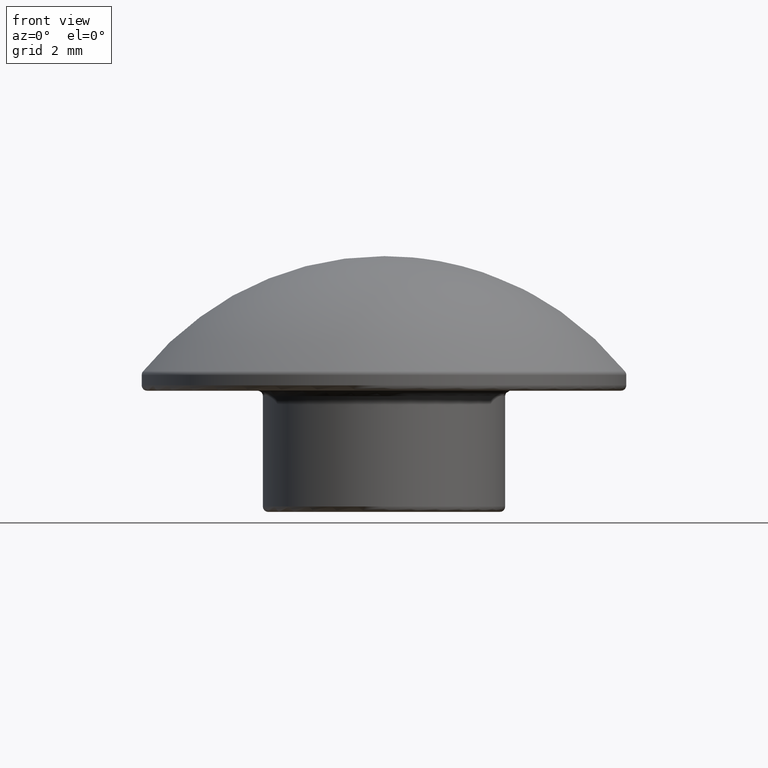
[diagram: clean part render]
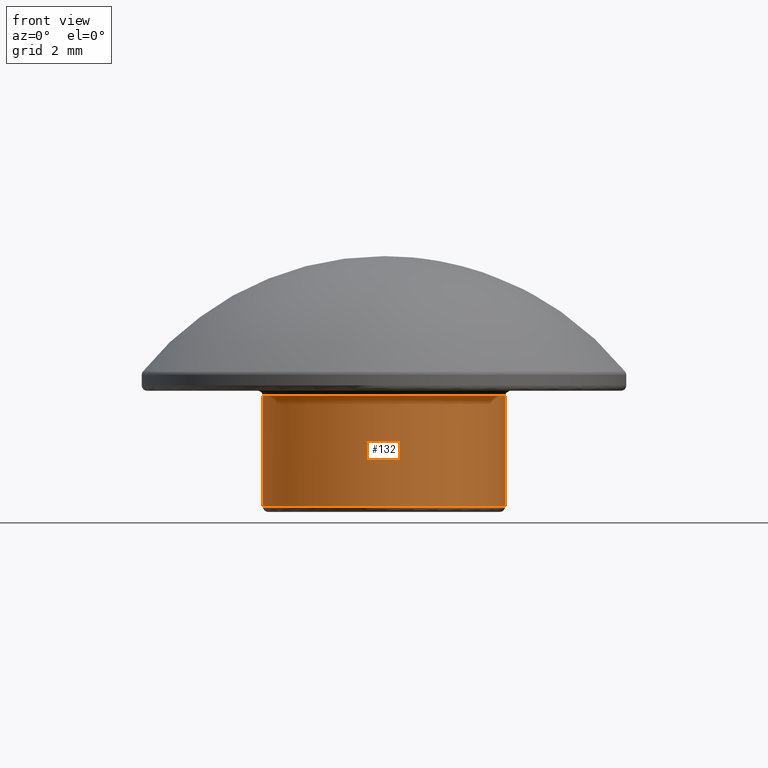
[diagram: same view with one face highlighted and labeled with its STEP entity id]
A machine part, front view. The second image highlights one B-rep face of the part: STEP entity #132.
In plain terms, the highlighted cylindrical surface (bore or boss wall) has radius 4.5 mm, axis along (0, 0, -1).
Its self-contained STEP definition (entity closure, byte-faithful):
#21=CYLINDRICAL_SURFACE('',#152,4.5);
#28=FACE_BOUND('',#57,.T.);
#39=FACE_OUTER_BOUND('',#56,.T.);
#56=EDGE_LOOP('',(#111));
#57=EDGE_LOOP('',(#112));
#72=CIRCLE('',#151,4.5);
#73=CIRCLE('',#153,4.5);
#83=VERTEX_POINT('',#228);
#84=VERTEX_POINT('',#231);
#94=EDGE_CURVE('',#83,#83,#72,.T.);
#95=EDGE_CURVE('',#84,#84,#73,.T.);
#111=ORIENTED_EDGE('',*,*,#95,.F.);
#112=ORIENTED_EDGE('',*,*,#94,.F.);
#132=ADVANCED_FACE('',(#39,#28),#21,.T.);
#151=AXIS2_PLACEMENT_3D('',#229,#187,#188);
#152=AXIS2_PLACEMENT_3D('',#230,#189,#190);
#153=AXIS2_PLACEMENT_3D('',#232,#191,#192);
#187=DIRECTION('center_axis',(0.,0.,1.));
#188=DIRECTION('ref_axis',(1.,0.,0.));
#189=DIRECTION('center_axis',(0.,0.,-1.));
#190=DIRECTION('ref_axis',(1.,0.,0.));
#191=DIRECTION('center_axis',(0.,0.,-1.));
#192=DIRECTION('ref_axis',(1.,0.,0.));
#228=CARTESIAN_POINT('',(-4.5,-5.51091059616309E-16,6.3));
#229=CARTESIAN_POINT('Origin',(0.,0.,6.3));
#230=CARTESIAN_POINT('Origin',(0.,0.,6.5));
#231=CARTESIAN_POINT('',(-4.5,5.51091059616309E-16,2.2));
#232=CARTESIAN_POINT('Origin',(0.,0.,2.2));